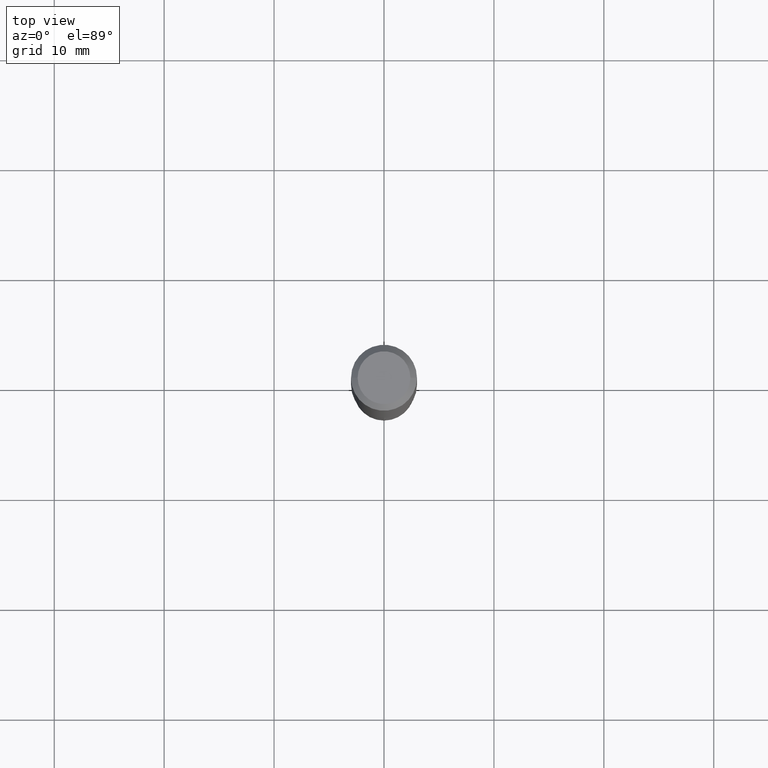
[diagram: clean part render]
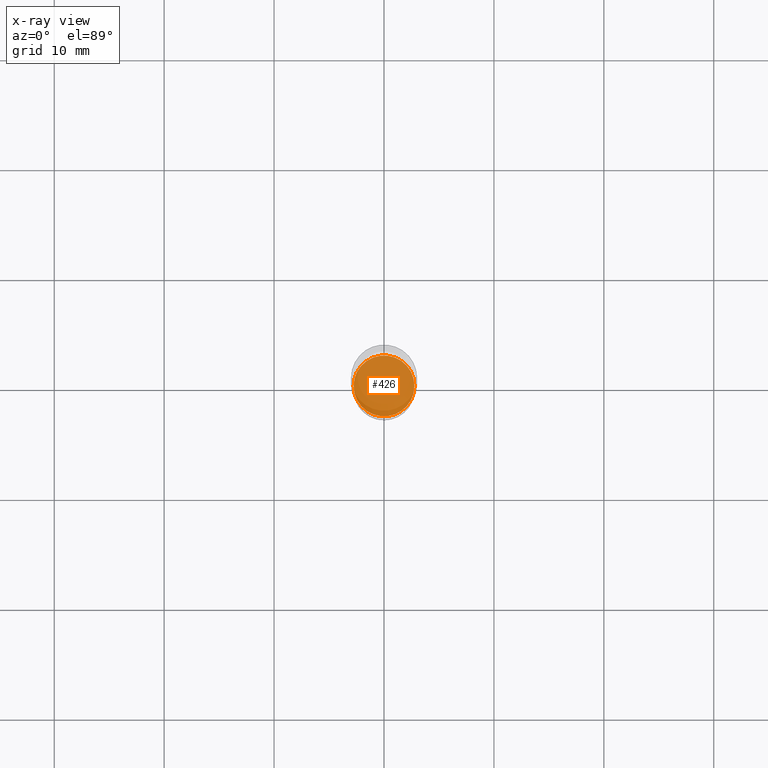
[diagram: x-ray — body ghosted, one internal face saturated and labeled with its STEP entity id]
A machine part, top view, then the same camera in x-ray: the body is ghosted and one INTERNAL B-rep face — a face not visible from any outside direction — is saturated and labeled: STEP entity #426.
In plain terms, the highlighted planar face has unit normal (-0, 0, 1).
Its self-contained STEP definition (entity closure, byte-faithful):
#12 = ORIENTED_EDGE ( 'NONE', *, *, #313, .F. ) ;
#76 = CARTESIAN_POINT ( 'NONE',  ( 4.193489908846272188E-29, -5.987192199848225298E-15, -1.714799999999999880 ) ) ;
#78 = EDGE_CURVE ( 'NONE', #474, #330, #116, .T. ) ;
#82 = AXIS2_PLACEMENT_3D ( 'NONE', #323, #279, #430 ) ;
#97 = CARTESIAN_POINT ( 'NONE',  ( 0.1088999999999999968, -6.747636835448259862E-15, -1.714799999999999880 ) ) ;
#111 = DIRECTION ( 'NONE',  ( 1.000000000000000000, -6.982962677686264344E-15, 0.000000000000000000 ) ) ;
#116 = CIRCLE ( 'NONE', #343, 0.1088999999999999968 ) ;
#127 = PLANE ( 'NONE',  #82 ) ;
#205 = DIRECTION ( 'NONE',  ( 1.000000000000000000, -6.982962677686264344E-15, 0.000000000000000000 ) ) ;
#211 = CARTESIAN_POINT ( 'NONE',  ( -0.1088999999999999968, -5.210761933431365017E-15, -1.714799999999999880 ) ) ;
#212 = ORIENTED_EDGE ( 'NONE', *, *, #78, .F. ) ;
#233 = DIRECTION ( 'NONE',  ( -2.445468806185136597E-29, 3.491481338843145583E-15, 1.000000000000000000 ) ) ;
#279 = DIRECTION ( 'NONE',  ( -2.438088387897960049E-29, 3.491481338843145188E-15, 1.000000000000000000 ) ) ;
#313 = EDGE_CURVE ( 'NONE', #330, #474, #485, .T. ) ;
#323 = CARTESIAN_POINT ( 'NONE',  ( 1.189614977930268288E-29, -1.028891207086335600E-14, -1.714799999999999880 ) ) ;
#329 = FACE_OUTER_BOUND ( 'NONE', #360, .T. ) ;
#330 = VERTEX_POINT ( 'NONE', #97 ) ;
#343 = AXIS2_PLACEMENT_3D ( 'NONE', #451, #375, #111 ) ;
#348 = AXIS2_PLACEMENT_3D ( 'NONE', #76, #233, #205 ) ;
#360 = EDGE_LOOP ( 'NONE', ( #12, #212 ) ) ;
#375 = DIRECTION ( 'NONE',  ( -2.445468806185136597E-29, 3.491481338843145583E-15, 1.000000000000000000 ) ) ;
#426 = ADVANCED_FACE ( 'NONE', ( #329 ), #127, .F. ) ;
#430 = DIRECTION ( 'NONE',  ( 1.000000000000000000, -6.982962677686265922E-15, 4.876176775795935793E-29 ) ) ;
#451 = CARTESIAN_POINT ( 'NONE',  ( 4.193489908846272188E-29, -5.987192199848225298E-15, -1.714799999999999880 ) ) ;
#474 = VERTEX_POINT ( 'NONE', #211 ) ;
#485 = CIRCLE ( 'NONE', #348, 0.1088999999999999968 ) ;